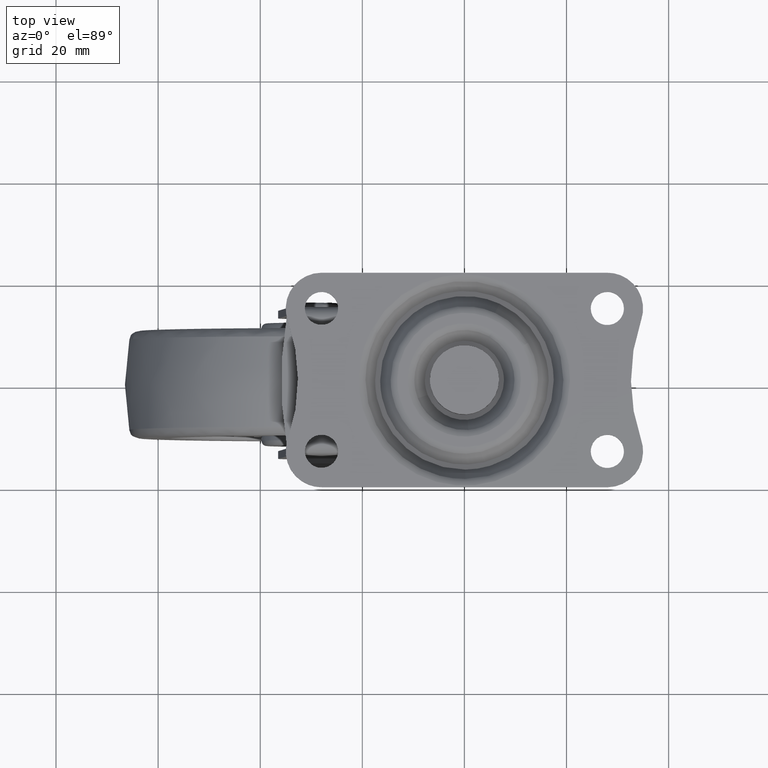
[diagram: clean part render]
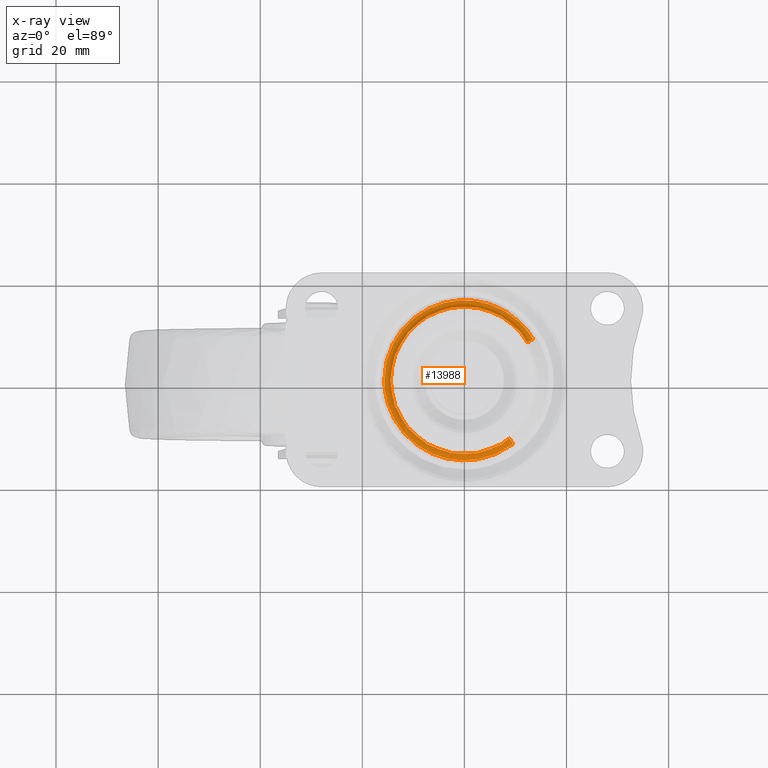
[diagram: x-ray — body ghosted, one internal face saturated and labeled with its STEP entity id]
A machine part, top view, then the same camera in x-ray: the body is ghosted and one INTERNAL B-rep face — a face not visible from any outside direction — is saturated and labeled: STEP entity #13988.
In plain terms, the highlighted face is a freeform B-spline surface patch.
Its self-contained STEP definition (entity closure, byte-faithful):
#10449=CARTESIAN_POINT('',(-13.317880826119840,5.457384386307230,-3.549999238447820));
#10450=VERTEX_POINT('',#10449);
#10490=CARTESIAN_POINT('',(-11.385173929811200,8.804930926861520,-3.549999238460730));
#10491=VERTEX_POINT('',#10490);
#10492=CARTESIAN_POINT('',(-13.317880826119840,5.457384386307230,-3.549999238447820));
#10493=CARTESIAN_POINT('',(-12.578342805289028,7.262109604605616,-3.549999238460730));
#10494=CARTESIAN_POINT('',(-11.385173929811200,8.804930926861520,-3.549999238460730));
#10502=(BOUNDED_CURVE()B_SPLINE_CURVE(2,(#10492,#10493,#10494),.UNSPECIFIED.,.F.,.U.)CURVE()GEOMETRIC_REPRESENTATION_ITEM()QUASI_UNIFORM_CURVE()RATIONAL_B_SPLINE_CURVE((1.0,0.990942874933649,1.0))REPRESENTATION_ITEM(''));
#10503=EDGE_CURVE('',#10450,#10491,#10502,.T.);
#10505=CARTESIAN_POINT('',(-10.648178946823061,9.683247345548729,-3.549999238447930));
#10506=VERTEX_POINT('',#10505);
#10575=CARTESIAN_POINT('',(-7.687100190629890,12.167887437763101,-3.549999238460730));
#10576=VERTEX_POINT('',#10575);
#10577=CARTESIAN_POINT('',(-10.648178946823061,9.683247345548729,-3.549999238447930));
#10578=CARTESIAN_POINT('',(-9.335988148031772,11.126197415850669,-3.549999238460730));
#10579=CARTESIAN_POINT('',(-7.687100190629888,12.167887437763090,-3.549999238460730));
#10587=(BOUNDED_CURVE()B_SPLINE_CURVE(2,(#10577,#10578,#10579),.UNSPECIFIED.,.F.,.U.)CURVE()GEOMETRIC_REPRESENTATION_ITEM()QUASI_UNIFORM_CURVE()RATIONAL_B_SPLINE_CURVE((1.0,0.990942874933648,1.0))REPRESENTATION_ITEM(''));
#10588=EDGE_CURVE('',#10506,#10576,#10587,.T.);
#10590=CARTESIAN_POINT('',(-6.694149536154360,12.741167765406759,-3.549999238447555));
#10591=VERTEX_POINT('',#10590);
#10660=CARTESIAN_POINT('',(-3.061848718942520,14.063217144777539,-3.549999238460730));
#10661=VERTEX_POINT('',#10660);
#10662=CARTESIAN_POINT('',(-6.694149536154360,12.741167765406759,-3.549999238447555));
#10663=CARTESIAN_POINT('',(-4.967575535610917,13.648301613558761,-3.549999238460730));
#10664=CARTESIAN_POINT('',(-3.061848718942521,14.063217144777539,-3.549999238460730));
#10672=(BOUNDED_CURVE()B_SPLINE_CURVE(2,(#10662,#10663,#10664),.UNSPECIFIED.,.F.,.U.)CURVE()GEOMETRIC_REPRESENTATION_ITEM()QUASI_UNIFORM_CURVE()RATIONAL_B_SPLINE_CURVE((1.0,0.990942874933651,1.0))REPRESENTATION_ITEM(''));
#10673=EDGE_CURVE('',#10591,#10661,#10672,.T.);
#10675=CARTESIAN_POINT('',(-1.932706896301035,14.262315313147020,-3.549999238447665));
#10676=VERTEX_POINT('',#10675);
#10745=CARTESIAN_POINT('',(1.932706896323755,14.262315313151561,-3.549999238460730));
#10746=VERTEX_POINT('',#10745);
#10747=CARTESIAN_POINT('',(-1.932706896301035,14.262315313147020,-3.549999238447665));
#10748=CARTESIAN_POINT('',(1.105409E-011,14.524219209192314,-3.549999238460730));
#10749=CARTESIAN_POINT('',(1.932706896323754,14.262315313151561,-3.549999238460730));
#10757=(BOUNDED_CURVE()B_SPLINE_CURVE(2,(#10747,#10748,#10749),.UNSPECIFIED.,.F.,.U.)CURVE()GEOMETRIC_REPRESENTATION_ITEM()QUASI_UNIFORM_CURVE()RATIONAL_B_SPLINE_CURVE((1.0,0.990942874933650,1.0))REPRESENTATION_ITEM(''));
#10758=EDGE_CURVE('',#10676,#10746,#10757,.T.);
#10760=CARTESIAN_POINT('',(3.061848718962025,14.063217144765700,-3.549999238447850));
#10761=VERTEX_POINT('',#10760);
#10830=CARTESIAN_POINT('',(6.694149536177440,12.741167765403221,-3.549999238460730));
#10831=VERTEX_POINT('',#10830);
#10832=CARTESIAN_POINT('',(3.061848718962025,14.063217144765700,-3.549999238447850));
#10833=CARTESIAN_POINT('',(4.967575535631633,13.648301613551254,-3.549999238460730));
#10834=CARTESIAN_POINT('',(6.694149536177442,12.741167765403230,-3.549999238460730));
#10842=(BOUNDED_CURVE()B_SPLINE_CURVE(2,(#10832,#10833,#10834),.UNSPECIFIED.,.F.,.U.)CURVE()GEOMETRIC_REPRESENTATION_ITEM()QUASI_UNIFORM_CURVE()RATIONAL_B_SPLINE_CURVE((1.0,0.990942874933649,1.0))REPRESENTATION_ITEM(''));
#10843=EDGE_CURVE('',#10761,#10831,#10842,.T.);
#10845=CARTESIAN_POINT('',(7.687100190644250,12.167887437745160,-3.549999238447770));
#10846=VERTEX_POINT('',#10845);
#10915=CARTESIAN_POINT('',(10.648178946842959,9.683247345537820,-3.549999238460730));
#10916=VERTEX_POINT('',#10915);
#10917=CARTESIAN_POINT('',(7.687100190644250,12.167887437745160,-3.549999238447770));
#10918=CARTESIAN_POINT('',(9.335988148048452,11.126197415836646,-3.549999238460730));
#10919=CARTESIAN_POINT('',(10.648178946842959,9.683247345537824,-3.549999238460730));
#10927=(BOUNDED_CURVE()B_SPLINE_CURVE(2,(#10917,#10918,#10919),.UNSPECIFIED.,.F.,.U.)CURVE()GEOMETRIC_REPRESENTATION_ITEM()QUASI_UNIFORM_CURVE()RATIONAL_B_SPLINE_CURVE((1.0,0.990942874933650,1.0))REPRESENTATION_ITEM(''));
#10928=EDGE_CURVE('',#10846,#10916,#10927,.T.);
#10930=CARTESIAN_POINT('',(11.385173929818460,8.804930926840042,-3.549999238447930));
#10931=VERTEX_POINT('',#10930);
#11000=CARTESIAN_POINT('',(12.342099500582320,7.404159237615483,-3.549999242034045));
#11001=VERTEX_POINT('',#11000);
#11002=CARTESIAN_POINT('',(11.385173929818460,8.804930926840042,-3.549999238447930));
#11003=CARTESIAN_POINT('',(11.904984940320325,8.132791779545675,-3.549999238453506));
#11004=CARTESIAN_POINT('',(12.342099500582320,7.404159237615483,-3.549999242034045));
#11012=(BOUNDED_CURVE()B_SPLINE_CURVE(2,(#11002,#11003,#11004),.UNSPECIFIED.,.F.,.U.)B_SPLINE_CURVE_WITH_KNOTS((3,3),(0.0,0.437894081817530),.UNSPECIFIED.)CURVE()GEOMETRIC_REPRESENTATION_ITEM()RATIONAL_B_SPLINE_CURVE((1.0,0.996033938535163,0.995541306757480))REPRESENTATION_ITEM(''));
#11013=EDGE_CURVE('',#10931,#11001,#11012,.T.);
#11355=CARTESIAN_POINT('',(8.779708553024026,-11.404635540456390,-3.549999241338663));
#11356=VERTEX_POINT('',#11355);
#11370=CARTESIAN_POINT('',(7.687100190629910,-12.167887437763079,-3.549999238460730));
#11371=VERTEX_POINT('',#11370);
#11372=CARTESIAN_POINT('',(8.779708553024026,-11.404635540456395,-3.549999241338663));
#11373=CARTESIAN_POINT('',(8.251093088970979,-11.811583195261921,-3.549999238460730));
#11374=CARTESIAN_POINT('',(7.687100190629914,-12.167887437763079,-3.549999238460730));
#11382=(BOUNDED_CURVE()B_SPLINE_CURVE(2,(#11372,#11373,#11374),.UNSPECIFIED.,.F.,.U.)B_SPLINE_CURVE_WITH_KNOTS((3,3),(0.655905070459708,1.0),.UNSPECIFIED.)CURVE()GEOMETRIC_REPRESENTATION_ITEM()RATIONAL_B_SPLINE_CURVE((0.995911729513132,0.996883489188456,1.0))REPRESENTATION_ITEM(''));
#11383=EDGE_CURVE('',#11356,#11371,#11382,.T.);
#11385=CARTESIAN_POINT('',(6.694149536154261,-12.741167765406800,-3.549999238447500));
#11386=VERTEX_POINT('',#11385);
#11455=CARTESIAN_POINT('',(3.061848718942540,-14.063217144777539,-3.549999238460730));
#11456=VERTEX_POINT('',#11455);
#11457=CARTESIAN_POINT('',(6.694149536154261,-12.741167765406800,-3.549999238447500));
#11458=CARTESIAN_POINT('',(4.967575535610878,-13.648301613558763,-3.549999238460730));
#11459=CARTESIAN_POINT('',(3.061848718942541,-14.063217144777539,-3.549999238460730));
#11467=(BOUNDED_CURVE()B_SPLINE_CURVE(2,(#11457,#11458,#11459),.UNSPECIFIED.,.F.,.U.)CURVE()GEOMETRIC_REPRESENTATION_ITEM()QUASI_UNIFORM_CURVE()RATIONAL_B_SPLINE_CURVE((1.0,0.990942874933652,1.0))REPRESENTATION_ITEM(''));
#11468=EDGE_CURVE('',#11386,#11456,#11467,.T.);
#11470=CARTESIAN_POINT('',(1.932706896300940,-14.262315313147001,-3.549999238447610));
#11471=VERTEX_POINT('',#11470);
#11540=CARTESIAN_POINT('',(-1.932706896323725,-14.262315313151561,-3.549999238460730));
#11541=VERTEX_POINT('',#11540);
#11542=CARTESIAN_POINT('',(1.932706896300940,-14.262315313147001,-3.549999238447610));
#11543=CARTESIAN_POINT('',(-1.107578E-011,-14.524219209192303,-3.549999238460730));
#11544=CARTESIAN_POINT('',(-1.932706896323718,-14.262315313151570,-3.549999238460730));
#11552=(BOUNDED_CURVE()B_SPLINE_CURVE(2,(#11542,#11543,#11544),.UNSPECIFIED.,.F.,.U.)CURVE()GEOMETRIC_REPRESENTATION_ITEM()QUASI_UNIFORM_CURVE()RATIONAL_B_SPLINE_CURVE((1.0,0.990942874933651,1.0))REPRESENTATION_ITEM(''));
#11553=EDGE_CURVE('',#11471,#11541,#11552,.T.);
#11555=CARTESIAN_POINT('',(-3.061848718962315,-14.063217144765501,-3.549999238447665));
#11556=VERTEX_POINT('',#11555);
#11625=CARTESIAN_POINT('',(-6.694149536177420,-12.741167765403240,-3.549999238460730));
#11626=VERTEX_POINT('',#11625);
#11627=CARTESIAN_POINT('',(-3.061848718962315,-14.063217144765501,-3.549999238447665));
#11628=CARTESIAN_POINT('',(-4.967575535631754,-13.648301613551183,-3.549999238460730));
#11629=CARTESIAN_POINT('',(-6.694149536177418,-12.741167765403240,-3.549999238460730));
#11637=(BOUNDED_CURVE()B_SPLINE_CURVE(2,(#11627,#11628,#11629),.UNSPECIFIED.,.F.,.U.)CURVE()GEOMETRIC_REPRESENTATION_ITEM()QUASI_UNIFORM_CURVE()RATIONAL_B_SPLINE_CURVE((1.0,0.990942874933650,1.0))REPRESENTATION_ITEM(''));
#11638=EDGE_CURVE('',#11556,#11626,#11637,.T.);
#11640=CARTESIAN_POINT('',(-7.687100190644140,-12.167887437745319,-3.549999238447875));
#11641=VERTEX_POINT('',#11640);
#11710=CARTESIAN_POINT('',(-10.648178946842940,-9.683247345537838,-3.549999238460730));
#11711=VERTEX_POINT('',#11710);
#11712=CARTESIAN_POINT('',(-7.687100190644140,-12.167887437745319,-3.549999238447875));
#11713=CARTESIAN_POINT('',(-9.335988148048376,-11.126197415836728,-3.549999238460730));
#11714=CARTESIAN_POINT('',(-10.648178946842940,-9.683247345537843,-3.549999238460730));
#11722=(BOUNDED_CURVE()B_SPLINE_CURVE(2,(#11712,#11713,#11714),.UNSPECIFIED.,.F.,.U.)CURVE()GEOMETRIC_REPRESENTATION_ITEM()QUASI_UNIFORM_CURVE()RATIONAL_B_SPLINE_CURVE((1.0,0.990942874933649,1.0))REPRESENTATION_ITEM(''));
#11723=EDGE_CURVE('',#11641,#11711,#11722,.T.);
#11725=CARTESIAN_POINT('',(-11.385173929818601,-8.804930926839681,-3.549999238447720));
#11726=VERTEX_POINT('',#11725);
#11795=CARTESIAN_POINT('',(-12.138656058658190,-7.733176781139918,-3.549999238455045));
#11796=VERTEX_POINT('',#11795);
#11797=CARTESIAN_POINT('',(-11.385173929818601,-8.804930926839681,-3.549999238447720));
#11798=CARTESIAN_POINT('',(-11.786329746203338,-8.286218312236400,-3.549999238452094));
#11799=CARTESIAN_POINT('',(-12.138656058658185,-7.733176781139918,-3.549999238455045));
#11807=(BOUNDED_CURVE()B_SPLINE_CURVE(2,(#11797,#11798,#11799),.UNSPECIFIED.,.F.,.U.)B_SPLINE_CURVE_WITH_KNOTS((3,3),(0.0,0.338243957585225),.UNSPECIFIED.)CURVE()GEOMETRIC_REPRESENTATION_ITEM()RATIONAL_B_SPLINE_CURVE((1.0,0.996936482173213,0.995945397134157))REPRESENTATION_ITEM(''));
#11808=EDGE_CURVE('',#11726,#11796,#11807,.T.);
#11873=CARTESIAN_POINT('',(-13.710027665785461,4.379969799239710,-3.549999238460730));
#11874=VERTEX_POINT('',#11873);
#11943=CARTESIAN_POINT('',(-13.317880826134919,-5.457384386290060,-3.549999238460730));
#11944=VERTEX_POINT('',#11943);
#11945=CARTESIAN_POINT('',(-12.138656058658185,-7.733176781139918,-3.549999238455045));
#11946=CARTESIAN_POINT('',(-12.829995378939145,-6.647991421206299,-3.549999238460730));
#11947=CARTESIAN_POINT('',(-13.317880826134930,-5.457384386290072,-3.549999238460730));
#11955=(BOUNDED_CURVE()B_SPLINE_CURVE(2,(#11945,#11946,#11947),.UNSPECIFIED.,.F.,.U.)B_SPLINE_CURVE_WITH_KNOTS((3,3),(0.338243957585225,1.0),.UNSPECIFIED.)CURVE()GEOMETRIC_REPRESENTATION_ITEM()RATIONAL_B_SPLINE_CURVE((0.995945397134157,0.994006392760437,1.0))REPRESENTATION_ITEM(''));
#11956=EDGE_CURVE('',#11796,#11944,#11955,.T.);
#11958=CARTESIAN_POINT('',(-13.710027665784940,-4.379969799216605,-3.549999238447690));
#11959=VERTEX_POINT('',#11958);
#12028=CARTESIAN_POINT('',(-14.381249726807320,-0.573280327640151,-3.549999238460730));
#12029=VERTEX_POINT('',#12028);
#12030=CARTESIAN_POINT('',(-13.710027665784940,-4.379969799216605,-3.549999238447690));
#12031=CARTESIAN_POINT('',(-14.303563683663349,-2.522104197700422,-3.549999238460730));
#12032=CARTESIAN_POINT('',(-14.381249726807329,-0.573280327640152,-3.549999238460730));
#12040=(BOUNDED_CURVE()B_SPLINE_CURVE(2,(#12030,#12031,#12032),.UNSPECIFIED.,.F.,.U.)CURVE()GEOMETRIC_REPRESENTATION_ITEM()QUASI_UNIFORM_CURVE()RATIONAL_B_SPLINE_CURVE((1.0,0.990942874933650,1.0))REPRESENTATION_ITEM(''));
#12041=EDGE_CURVE('',#11959,#12029,#12040,.T.);
#12043=CARTESIAN_POINT('',(-14.381249726798879,0.573280327661805,-3.549999238447610));
#12044=VERTEX_POINT('',#12043);
#12113=CARTESIAN_POINT('',(-14.381249726798879,0.573280327661805,-3.549999238447610));
#12114=CARTESIAN_POINT('',(-14.303563683659505,2.522104197722196,-3.549999238460730));
#12115=CARTESIAN_POINT('',(-13.710027665785470,4.379969799239713,-3.549999238460730));
#12123=(BOUNDED_CURVE()B_SPLINE_CURVE(2,(#12113,#12114,#12115),.UNSPECIFIED.,.F.,.U.)CURVE()GEOMETRIC_REPRESENTATION_ITEM()QUASI_UNIFORM_CURVE()RATIONAL_B_SPLINE_CURVE((1.0,0.990942874933651,1.0))REPRESENTATION_ITEM(''));
#12124=EDGE_CURVE('',#12044,#11874,#12123,.T.);
#13551=CARTESIAN_POINT('',(9.617536650804698,-12.492957508065260,-4.298151745412562));
#13552=CARTESIAN_POINT('',(8.893872435965106,-13.050060748399057,-4.298151745412563));
#13553=CARTESIAN_POINT('',(8.110722905467547,-13.519880638475321,-4.298151745412561));
#13554=CARTESIAN_POINT('',(-5.409157733007774,-21.630603543942868,-4.298151745412562));
#13555=CARTESIAN_POINT('',(-13.519880638475321,-8.110722905467549,-4.298151745412561));
#13556=CARTESIAN_POINT('',(-21.630603543942868,5.409157733007772,-4.298151745412562));
#13557=CARTESIAN_POINT('',(-8.110722905467551,13.519880638475321,-4.298151745412561));
#13558=CARTESIAN_POINT('',(5.409157733007771,21.630603543942868,-4.298151745412562));
#13559=CARTESIAN_POINT('',(13.519880638475321,8.110722905467551,-4.298151745412561));
#13560=CARTESIAN_POINT('',(9.027617740540732,-11.726666497516813,-4.346193176694547));
#13561=CARTESIAN_POINT('',(8.348341524469982,-12.249598229243491,-4.346193176694546));
#13562=CARTESIAN_POINT('',(7.613228693428743,-12.690600382758184,-4.346193176694546));
#13563=CARTESIAN_POINT('',(-5.077371689329442,-20.303829076186933,-4.346193176694546));
#13564=CARTESIAN_POINT('',(-12.690600382758184,-7.613228693428743,-4.346193176694546));
#13565=CARTESIAN_POINT('',(-20.303829076186933,5.077371689329440,-4.346193176694546));
#13566=CARTESIAN_POINT('',(-7.613228693428745,12.690600382758184,-4.346193176694546));
#13567=CARTESIAN_POINT('',(5.077371689329438,20.303829076186933,-4.346193176694546));
#13568=CARTESIAN_POINT('',(12.690600382758184,7.613228693428745,-4.346193176694546));
#13569=CARTESIAN_POINT('',(8.758007435609542,-11.376448951638260,-3.484699028897978));
#13570=CARTESIAN_POINT('',(8.099017841437377,-11.883763298169741,-3.484699028897978));
#13571=CARTESIAN_POINT('',(7.385859195900234,-12.311594897890327,-3.484699028897977));
#13572=CARTESIAN_POINT('',(-4.925735701990094,-19.697454093790565,-3.484699028897977));
#13573=CARTESIAN_POINT('',(-12.311594897890327,-7.385859195900234,-3.484699028897977));
#13574=CARTESIAN_POINT('',(-19.697454093790565,4.925735701990091,-3.484699028897977));
#13575=CARTESIAN_POINT('',(-7.385859195900235,12.311594897890327,-3.484699028897977));
#13576=CARTESIAN_POINT('',(4.925735701990089,19.697454093790565,-3.484699028897977));
#13577=CARTESIAN_POINT('',(12.311594897890327,7.385859195900236,-3.484699028897977));
#13585=(BOUNDED_SURFACE()B_SPLINE_SURFACE(2,2,((#13551,#13560,#13569),(#13552,#13561,#13570),(#13553,#13562,#13571),(#13554,#13563,#13572),(#13555,#13564,#13573),(#13556,#13565,#13574),(#13557,#13566,#13575),(#13558,#13567,#13576),(#13559,#13568,#13577)),.UNSPECIFIED.,.F.,.F.,.U.)B_SPLINE_SURFACE_WITH_KNOTS((3,2,2,2,3),(3,3),(0.0,2.089772968706357,28.211959989594678,54.334147010482987,80.456334031371313),(0.0,1.768304401214299),.UNSPECIFIED.)GEOMETRIC_REPRESENTATION_ITEM()RATIONAL_B_SPLINE_SURFACE(((0.881573213290315,0.741118985900789,0.882647111706563),(0.899706493346227,0.756363230988425,0.900802481023400),(0.921293727586656,0.774511138510431,0.922416011998250),(0.651453042241156,0.547662078145239,0.652246617159015),(0.921293727586656,0.774511138510431,0.922416011998250),(0.651453042241156,0.547662078145239,0.652246617159015),(0.921293727586656,0.774511138510431,0.922416011998250),(0.651453042241156,0.547662078145239,0.652246617159015),(0.921293727586656,0.774511138510431,0.922416011998250)))REPRESENTATION_ITEM('')SURFACE());
#13586=CARTESIAN_POINT('',(9.572137941933168,-12.433982735335970,-4.299999238460730));
#13587=VERTEX_POINT('',#13586);
#13588=CARTESIAN_POINT('',(-15.691709645000250,0.0,-4.299999238460730));
#13589=VERTEX_POINT('',#13588);
#13590=CARTESIAN_POINT('',(9.572137941933168,-12.433982735335977,-4.299999238460730));
#13591=CARTESIAN_POINT('',(5.340427082148841,-15.691709645000246,-4.299999238460730));
#13592=CARTESIAN_POINT('',(0.0,-15.691709645000250,-4.299999238460730));
#13593=CARTESIAN_POINT('',(-15.691709645000254,-15.691709645000254,-4.299999238460730));
#13594=CARTESIAN_POINT('',(-15.691709645000250,0.0,-4.299999238460730));
#13602=(BOUNDED_CURVE()B_SPLINE_CURVE(2,(#13590,#13591,#13592,#13593,#13594),.UNSPECIFIED.,.F.,.U.)B_SPLINE_CURVE_WITH_KNOTS((3,2,3),(0.644540406164488,0.750000000000000,1.0),.UNSPECIFIED.)CURVE()GEOMETRIC_REPRESENTATION_ITEM()RATIONAL_B_SPLINE_CURVE((0.857132100277108,0.876446400427030,1.0,0.707106781186547,1.0))REPRESENTATION_ITEM(''));
#13603=EDGE_CURVE('',#13587,#13589,#13602,.T.);
#13604=ORIENTED_EDGE('',*,*,#13603,.T.);
#13605=CARTESIAN_POINT('',(13.456059301618900,8.072435793900297,-4.299999238460730));
#13606=VERTEX_POINT('',#13605);
#13607=CARTESIAN_POINT('',(-15.691709645000250,0.0,-4.299999238460730));
#13608=CARTESIAN_POINT('',(-15.691709645000254,15.691709645000254,-4.299999238460730));
#13609=CARTESIAN_POINT('',(0.0,15.691709645000250,-4.299999238460730));
#13610=CARTESIAN_POINT('',(8.885174351067740,15.691709645000243,-4.299999238460729));
#13611=CARTESIAN_POINT('',(13.456059301618897,8.072435793900297,-4.299999238460730));
#13619=(BOUNDED_CURVE()B_SPLINE_CURVE(2,(#13607,#13608,#13609,#13610,#13611),.UNSPECIFIED.,.F.,.U.)B_SPLINE_CURVE_WITH_KNOTS((3,2,3),(0.0,0.250000000000000,0.412160451658588),.UNSPECIFIED.)CURVE()GEOMETRIC_REPRESENTATION_ITEM()RATIONAL_B_SPLINE_CURVE((1.0,0.707106781186547,1.0,0.810017213397892,0.866495982657823))REPRESENTATION_ITEM(''));
#13620=EDGE_CURVE('',#13589,#13606,#13619,.T.);
#13621=ORIENTED_EDGE('',*,*,#13620,.T.);
#13622=CARTESIAN_POINT('',(13.456059301618907,8.072435793900297,-4.299999238460730));
#13623=CARTESIAN_POINT('',(12.713419437733407,7.626918091790882,-4.299999238178653));
#13624=CARTESIAN_POINT('',(12.342099500582320,7.404159237615485,-3.549999242034045));
#13632=(BOUNDED_CURVE()B_SPLINE_CURVE(2,(#13622,#13623,#13624),.UNSPECIFIED.,.F.,.U.)B_SPLINE_CURVE_WITH_KNOTS((3,3),(-1.630685373385431,-0.364008794580820),.UNSPECIFIED.)CURVE()GEOMETRIC_REPRESENTATION_ITEM()RATIONAL_B_SPLINE_CURVE((0.908569702288071,0.787286138560376,0.909590037061556))REPRESENTATION_ITEM(''));
#13633=EDGE_CURVE('',#13606,#11001,#13632,.T.);
#13634=ORIENTED_EDGE('',*,*,#13633,.T.);
#13635=ORIENTED_EDGE('',*,*,#11013,.F.);
#13636=CARTESIAN_POINT('',(10.648178946842970,9.683247345537829,-3.549999238460727));
#13637=CARTESIAN_POINT('',(10.687342733718509,9.661825798238388,-3.575222179074181));
#13638=CARTESIAN_POINT('',(10.726417845782951,9.637293443798457,-3.595430862376615));
#13639=CARTESIAN_POINT('',(10.803823520388400,9.583193867169701,-3.629143039793382));
#13640=CARTESIAN_POINT('',(10.842162399280109,9.553599199014396,-3.642580942354348));
#13641=CARTESIAN_POINT('',(10.898864628303929,9.505595911821708,-3.658566899178990));
#13642=CARTESIAN_POINT('',(10.917683713662029,9.488935997965127,-3.663197523269508));
#13643=CARTESIAN_POINT('',(10.954478756590690,9.454907781127997,-3.671010776794998));
#13644=CARTESIAN_POINT('',(10.972515429922790,9.437492131379059,-3.674213837698281));
#13645=CARTESIAN_POINT('',(11.025561084402231,9.384071385567900,-3.681864492139412));
#13646=CARTESIAN_POINT('',(11.059510093557540,9.346898582630571,-3.684375347462299));
#13647=CARTESIAN_POINT('',(11.124557711939961,9.269433694009326,-3.684418330275068));
#13648=CARTESIAN_POINT('',(11.155768638307130,9.228939106249539,-3.681897579139849));
#13649=CARTESIAN_POINT('',(11.213630061014390,9.146972845062622,-3.671738701665908));
#13650=CARTESIAN_POINT('',(11.240495499205419,9.105274990739241,-3.664128094000679));
#13651=CARTESIAN_POINT('',(11.290031778249579,9.020558999789154,-3.643168707407534));
#13652=CARTESIAN_POINT('',(11.312711456763781,8.977540052684516,-3.629848356728803));
#13653=CARTESIAN_POINT('',(11.353395872409950,8.890291978567879,-3.595623932184477));
#13654=CARTESIAN_POINT('',(11.370914842949521,8.847112161431564,-3.575158133124866));
#13655=CARTESIAN_POINT('',(11.385173929818460,8.804930926840042,-3.549999238447930));
#13656=B_SPLINE_CURVE_WITH_KNOTS('',3,(#13636,#13637,#13638,#13639,#13640,#13641,#13642,#13643,#13644,#13645,#13646,#13647,#13648,#13649,#13650,#13651,#13652,#13653,#13654,#13655),.UNSPECIFIED.,.F.,.U.,(4,2,2,2,2,2,2,2,2,4),(0.0,0.125000000000000,0.250000000000000,0.312500000000000,0.375000000000000,0.500000000000000,0.625000000000000,0.750000000000000,0.875000000000000,1.0),.UNSPECIFIED.);
#13657=EDGE_CURVE('',#10916,#10931,#13656,.T.);
#13658=ORIENTED_EDGE('',*,*,#13657,.F.);
#13659=ORIENTED_EDGE('',*,*,#10928,.F.);
#13660=CARTESIAN_POINT('',(6.694149536177440,12.741167765403221,-3.549999238460730));
#13661=CARTESIAN_POINT('',(6.738278058384052,12.734432899480460,-3.575222179074161));
#13662=CARTESIAN_POINT('',(6.783387212229073,12.724744502471500,-3.595430862376600));
#13663=CARTESIAN_POINT('',(6.874627898415216,12.700381829448579,-3.629143039793377));
#13664=CARTESIAN_POINT('',(6.920776632643126,12.685684607021919,-3.642580942354343));
#13665=CARTESIAN_POINT('',(6.990477390004688,12.659969576771079,-3.658566899178986));
#13666=CARTESIAN_POINT('',(7.013859571770654,12.650750884928559,-3.663197523269505));
#13667=CARTESIAN_POINT('',(7.060073937691981,12.631359466524330,-3.671010776794994));
#13668=CARTESIAN_POINT('',(7.082979369548929,12.621163014567220,-3.674213837698270));
#13669=CARTESIAN_POINT('',(7.151096950766930,12.589106616279439,-3.681864492139396));
#13670=CARTESIAN_POINT('',(7.195712431541618,12.565786852642351,-3.684375347462285));
#13671=CARTESIAN_POINT('',(7.283331750844246,12.515241264197099,-3.684418330275044));
#13672=CARTESIAN_POINT('',(7.326510392748880,12.487863564406879,-3.681897579139815));
#13673=CARTESIAN_POINT('',(7.408916457094095,12.430630245703460,-3.671738701665857));
#13674=CARTESIAN_POINT('',(7.448423217228459,12.400635600713761,-3.664128094000618));
#13675=CARTESIAN_POINT('',(7.523946668474179,12.337971014413871,-3.643168707407445));
#13676=CARTESIAN_POINT('',(7.559971941470214,12.305303334161669,-3.629848356728700));
#13677=CARTESIAN_POINT('',(7.628043385448173,12.237231852406870,-3.595623932184331));
#13678=CARTESIAN_POINT('',(7.659274200033707,12.202647937691850,-3.575158133124706));
#13679=CARTESIAN_POINT('',(7.687100190644250,12.167887437745160,-3.549999238447770));
#13680=B_SPLINE_CURVE_WITH_KNOTS('',3,(#13660,#13661,#13662,#13663,#13664,#13665,#13666,#13667,#13668,#13669,#13670,#13671,#13672,#13673,#13674,#13675,#13676,#13677,#13678,#13679),.UNSPECIFIED.,.F.,.U.,(4,2,2,2,2,2,2,2,2,4),(0.0,0.125000000000002,0.250000000000003,0.312500000000003,0.375000000000003,0.500000000000002,0.625000000000002,0.750000000000001,0.875000000000001,1.0),.UNSPECIFIED.);
#13681=EDGE_CURVE('',#10831,#10846,#13680,.T.);
#13682=ORIENTED_EDGE('',*,*,#13681,.F.);
#13683=ORIENTED_EDGE('',*,*,#10843,.F.);
#13684=CARTESIAN_POINT('',(1.932706896323752,14.262315313151580,-3.549999238460735));
#13685=CARTESIAN_POINT('',(1.976477602815655,14.271079452831829,-3.575222179074192));
#13686=CARTESIAN_POINT('',(2.022179968747310,14.277403576918640,-3.595430862376632));
#13687=CARTESIAN_POINT('',(2.116250693190956,14.285716305422900,-3.629143039793403));
#13688=CARTESIAN_POINT('',(2.164643064324383,14.287689230657451,-3.642580942354366));
#13689=CARTESIAN_POINT('',(2.238935410012235,14.287364069510160,-3.658566899179009));
#13690=CARTESIAN_POINT('',(2.264060451980853,14.286698509971300,-3.663197523269528));
#13691=CARTESIAN_POINT('',(2.314120006313319,14.284282781246400,-3.671010776795018));
#13692=CARTESIAN_POINT('',(2.339131463564987,14.282535369670761,-3.674213837698297));
#13693=CARTESIAN_POINT('',(2.414104985918210,14.275709793641930,-3.681864492139428));
#13694=CARTESIAN_POINT('',(2.464005652876467,14.269055776962800,-3.684375347462308));
#13695=CARTESIAN_POINT('',(2.563628490067943,14.251526032633500,-3.684418330275074));
#13696=CARTESIAN_POINT('',(2.613566866047470,14.240567375459371,-3.681897579139851));
#13697=CARTESIAN_POINT('',(2.710578184486614,14.214970182148949,-3.671738701665901));
#13698=CARTESIAN_POINT('',(2.757961168234407,14.200296543352531,-3.664128094000668));
#13699=CARTESIAN_POINT('',(2.850362548854015,14.167241635641441,-3.643168707407509));
#13700=CARTESIAN_POINT('',(2.895388236732163,14.148865426603701,-3.629848356728772));
#13701=CARTESIAN_POINT('',(2.982636288270652,14.108180962538500,-3.595623932184426));
#13702=CARTESIAN_POINT('',(3.023812049745418,14.086364280763631,-3.575158133124810));
#13703=CARTESIAN_POINT('',(3.061848718962025,14.063217144765700,-3.549999238447850));
#13704=B_SPLINE_CURVE_WITH_KNOTS('',3,(#13684,#13685,#13686,#13687,#13688,#13689,#13690,#13691,#13692,#13693,#13694,#13695,#13696,#13697,#13698,#13699,#13700,#13701,#13702,#13703),.UNSPECIFIED.,.F.,.U.,(4,2,2,2,2,2,2,2,2,4),(0.0,0.124999999999999,0.249999999999997,0.312499999999997,0.374999999999997,0.499999999999998,0.624999999999998,0.749999999999999,0.874999999999999,1.0),.UNSPECIFIED.);
#13705=EDGE_CURVE('',#10746,#10761,#13704,.T.);
#13706=ORIENTED_EDGE('',*,*,#13705,.F.);
#13707=ORIENTED_EDGE('',*,*,#10758,.F.);
#13708=CARTESIAN_POINT('',(-3.061848718942523,14.063217144777550,-3.549999238460725));
#13709=CARTESIAN_POINT('',(-3.023715221355051,14.086423205470460,-3.575222179074191));
#13710=CARTESIAN_POINT('',(-2.982932023163181,14.107997067954040,-3.595430862376634));
#13711=CARTESIAN_POINT('',(-2.897377578165929,14.147982560245060,-3.629143039793413));
#13712=CARTESIAN_POINT('',(-2.852578404280991,14.166387669240260,-3.642580942354382));
#13713=CARTESIAN_POINT('',(-2.782655223595015,14.191491596429740,-3.658566899179024));
#13714=CARTESIAN_POINT('',(-2.758817772291288,14.199459445497560,-3.663197523269543));
#13715=CARTESIAN_POINT('',(-2.710950950600495,14.214310778988560,-3.671010776795030));
#13716=CARTESIAN_POINT('',(-2.686850218828443,14.221223171419449,-3.674213837698307));
#13717=CARTESIAN_POINT('',(-2.614063668627108,14.240451682853440,-3.681864492139431));
#13718=CARTESIAN_POINT('',(-2.564896572375834,14.251265985746590,-3.684375347462313));
#13719=CARTESIAN_POINT('',(-2.465286201737241,14.268866431410800,-3.684418330275064));
#13720=CARTESIAN_POINT('',(-2.414611396837881,14.275648592640509,-3.681897579139834));
#13721=CARTESIAN_POINT('',(-2.314695821043112,14.284774924010650,-3.671738701665867));
#13722=CARTESIAN_POINT('',(-2.265151700820218,14.287192148806181,-3.664128094000617));
#13723=CARTESIAN_POINT('',(-2.167017361028552,14.287733829392311,-3.643168707407431));
#13724=CARTESIAN_POINT('',(-2.118422020734761,14.285865533582930,-3.629848356728675));
#13725=CARTESIAN_POINT('',(-2.022520764295363,14.277475234012289,-3.595623932184284));
#13726=CARTESIAN_POINT('',(-1.976366460454752,14.271057198979539,-3.575158133124648));
#13727=CARTESIAN_POINT('',(-1.932706896301035,14.262315313147020,-3.549999238447665));
#13728=B_SPLINE_CURVE_WITH_KNOTS('',3,(#13708,#13709,#13710,#13711,#13712,#13713,#13714,#13715,#13716,#13717,#13718,#13719,#13720,#13721,#13722,#13723,#13724,#13725,#13726,#13727),.UNSPECIFIED.,.F.,.U.,(4,2,2,2,2,2,2,2,2,4),(0.0,0.125000000000001,0.250000000000002,0.312500000000002,0.375000000000002,0.500000000000001,0.625000000000001,0.750000000000001,0.875000000000000,1.0),.UNSPECIFIED.);
#13729=EDGE_CURVE('',#10661,#10676,#13728,.T.);
#13730=ORIENTED_EDGE('',*,*,#13729,.F.);
#13731=ORIENTED_EDGE('',*,*,#10673,.F.);
#13732=CARTESIAN_POINT('',(-7.687100190629895,12.167887437763101,-3.549999238460731));
#13733=CARTESIAN_POINT('',(-7.659203364546398,12.202736426064121,-3.575222179074201));
#13734=CARTESIAN_POINT('',(-7.628258389692164,12.236957900732660,-3.595430862376646));
#13735=CARTESIAN_POINT('',(-7.561539352857122,12.303793316317149,-3.629143039793427));
#13736=CARTESIAN_POINT('',(-7.525736817756593,12.336410681297689,-3.642580942354395));
#13737=CARTESIAN_POINT('',(-7.468616569619480,12.383915792710420,-3.658566899179036));
#13738=CARTESIAN_POINT('',(-7.448941857411192,12.399556010194400,-3.663197523269549));
#13739=CARTESIAN_POINT('',(-7.409041213497035,12.429883115899949,-3.671010776795035));
#13740=CARTESIAN_POINT('',(-7.388758111145230,12.444621575794169,-3.674213837698318));
#13741=CARTESIAN_POINT('',(-7.326937665265151,12.487584932429430,-3.681864492139439));
#13742=CARTESIAN_POINT('',(-7.284434417157829,12.514563190363830,-3.684375347462316));
#13743=CARTESIAN_POINT('',(-7.196850993863647,12.565170952519580,-3.684418330275060));
#13744=CARTESIAN_POINT('',(-7.151551889395790,12.588875903414801,-3.681897579139824));
#13745=CARTESIAN_POINT('',(-7.060783349283099,12.631624989211950,-3.671738701665844));
#13746=CARTESIAN_POINT('',(-7.015053844677326,12.650841524614670,-3.664128094000592));
#13747=CARTESIAN_POINT('',(-6.923022995401090,12.684914458825000,-3.643168707407388));
#13748=CARTESIAN_POINT('',(-6.876719317921928,12.699779420291719,-3.629848356728620));
#13749=CARTESIAN_POINT('',(-6.783731963460013,12.724695279171510,-3.595623932184200));
#13750=CARTESIAN_POINT('',(-6.738166007461713,12.734450000625939,-3.575158133124553));
#13751=CARTESIAN_POINT('',(-6.694149536154360,12.741167765406759,-3.549999238447555));
#13752=B_SPLINE_CURVE_WITH_KNOTS('',3,(#13732,#13733,#13734,#13735,#13736,#13737,#13738,#13739,#13740,#13741,#13742,#13743,#13744,#13745,#13746,#13747,#13748,#13749,#13750,#13751),.UNSPECIFIED.,.F.,.U.,(4,2,2,2,2,2,2,2,2,4),(0.0,0.125000000000004,0.250000000000007,0.312500000000007,0.375000000000008,0.500000000000006,0.625000000000005,0.750000000000003,0.875000000000002,1.0),.UNSPECIFIED.);
#13753=EDGE_CURVE('',#10576,#10591,#13752,.T.);
#13754=ORIENTED_EDGE('',*,*,#13753,.F.);
#13755=ORIENTED_EDGE('',*,*,#10588,.F.);
#13756=CARTESIAN_POINT('',(-11.385173929811190,8.804930926861523,-3.549999238460704));
#13757=CARTESIAN_POINT('',(-11.370878544170649,8.847219540465229,-3.575222179074161));
#13758=CARTESIAN_POINT('',(-11.353504213320690,8.889961012418496,-3.595430862376600));
#13759=CARTESIAN_POINT('',(-11.313667885158321,8.975585013791225,-3.629143039793372));
#13760=CARTESIAN_POINT('',(-11.291180302964490,9.018480499159407,-3.642580942354338));
#13761=CARTESIAN_POINT('',(-11.253752532306700,9.082656977258173,-3.658566899178982));
#13762=CARTESIAN_POINT('',(-11.240613619854010,9.104083122104715,-3.663197523269500));
#13763=CARTESIAN_POINT('',(-11.213491760243359,9.146228103496302,-3.671010776794990));
#13764=CARTESIAN_POINT('',(-11.199472728802160,9.167014955074096,-3.674213837698272));
#13765=CARTESIAN_POINT('',(-11.156074845389130,9.228531142028777,-3.681864492139402));
#13766=CARTESIAN_POINT('',(-11.125361964428670,9.268419378940850,-3.684375347462289));
#13767=CARTESIAN_POINT('',(-11.060369341921909,9.345930414581087,-3.684418330275055));
#13768=CARTESIAN_POINT('',(-11.025909678428000,9.383698988216027,-3.681897579139832));
#13769=CARTESIAN_POINT('',(-10.955236199536021,9.454914657783734,-3.671738701665887));
#13770=CARTESIAN_POINT('',(-10.918836963698469,9.488612706018216,-3.664128094000654));
#13771=CARTESIAN_POINT('',(-10.844009883591120,9.552107195124014,-3.643168707407502));
#13772=CARTESIAN_POINT('',(-10.805582775800110,9.581912480130486,-3.629848356728763));
#13773=CARTESIAN_POINT('',(-10.726724970611061,9.637129277160916,-3.595623932184425));
#13774=CARTESIAN_POINT('',(-10.687243289230381,9.661880191730777,-3.575158133124823));
#13775=CARTESIAN_POINT('',(-10.648178946823061,9.683247345548729,-3.549999238447930));
#13776=B_SPLINE_CURVE_WITH_KNOTS('',3,(#13756,#13757,#13758,#13759,#13760,#13761,#13762,#13763,#13764,#13765,#13766,#13767,#13768,#13769,#13770,#13771,#13772,#13773,#13774,#13775),.UNSPECIFIED.,.F.,.U.,(4,2,2,2,2,2,2,2,2,4),(0.0,0.125000000000001,0.250000000000002,0.312500000000003,0.375000000000004,0.500000000000003,0.625000000000002,0.750000000000002,0.875000000000001,1.0),.UNSPECIFIED.);
#13777=EDGE_CURVE('',#10491,#10506,#13776,.T.);
#13778=ORIENTED_EDGE('',*,*,#13777,.F.);
#13779=ORIENTED_EDGE('',*,*,#10503,.F.);
#13780=CARTESIAN_POINT('',(-13.710027665785470,4.379969799239719,-3.549999238460707));
#13781=CARTESIAN_POINT('',(-13.711057955073549,4.424597407232064,-3.575222179074169));
#13782=CARTESIAN_POINT('',(-13.709349868946150,4.470703624155576,-3.595430862376608));
#13783=CARTESIAN_POINT('',(-13.701201098554391,4.564788693075362,-3.629143039793383));
#13784=CARTESIAN_POINT('',(-13.694740803561171,4.612788470225858,-3.642580942354347));
#13785=CARTESIAN_POINT('',(-13.681519851899051,4.685895684608050,-3.658566899178990));
#13786=CARTESIAN_POINT('',(-13.676501485953439,4.710523447532441,-3.663197523269508));
#13787=CARTESIAN_POINT('',(-13.665429707191320,4.759402997860573,-3.671010776794997));
#13788=CARTESIAN_POINT('',(-13.659365648751381,4.783731040040406,-3.674213837698276));
#13789=CARTESIAN_POINT('',(-13.639624753029519,4.856380297285572,-3.681864492139405));
#13790=CARTESIAN_POINT('',(-13.624406665933570,4.904367403116048,-3.684375347462291));
#13791=CARTESIAN_POINT('',(-13.589843913677440,4.999432737401538,-3.684418330275054));
#13792=CARTESIAN_POINT('',(-13.570380035145259,5.046709486391049,-3.681897579139831));
#13793=CARTESIAN_POINT('',(-13.528325882057780,5.137802078948114,-3.671738701665878));
#13794=CARTESIAN_POINT('',(-13.505647200025940,5.181917158067051,-3.664128094000642));
#13795=CARTESIAN_POINT('',(-13.457049139278450,5.267174829603299,-3.643168707407479));
#13796=CARTESIAN_POINT('',(-13.431133477498870,5.308325480898578,-3.629848356728735));
#13797=CARTESIAN_POINT('',(-13.375916636705661,5.387183255444613,-3.595623932184380));
#13798=CARTESIAN_POINT('',(-13.347281303404619,5.423945037548191,-3.575158133124761));
#13799=CARTESIAN_POINT('',(-13.317880826119840,5.457384386307230,-3.549999238447820));
#13800=B_SPLINE_CURVE_WITH_KNOTS('',3,(#13780,#13781,#13782,#13783,#13784,#13785,#13786,#13787,#13788,#13789,#13790,#13791,#13792,#13793,#13794,#13795,#13796,#13797,#13798,#13799),.UNSPECIFIED.,.F.,.U.,(4,2,2,2,2,2,2,2,2,4),(0.0,0.124999999999999,0.249999999999997,0.312499999999996,0.374999999999995,0.499999999999996,0.624999999999997,0.749999999999998,0.874999999999999,1.0),.UNSPECIFIED.);
#13801=EDGE_CURVE('',#11874,#10450,#13800,.T.);
#13802=ORIENTED_EDGE('',*,*,#13801,.F.);
#13803=ORIENTED_EDGE('',*,*,#12124,.F.);
#13804=CARTESIAN_POINT('',(-14.381249726807329,-0.573280327640152,-3.549999238460723));
#13805=CARTESIAN_POINT('',(-14.397481422930451,-0.531696473416381,-3.575222179074193));
#13806=CARTESIAN_POINT('',(-14.411645601921260,-0.487786601738880,-3.595430862376638));
#13807=CARTESIAN_POINT('',(-14.436167251272391,-0.396588513131468,-3.629143039793419));
#13808=CARTESIAN_POINT('',(-14.446513450399790,-0.349273925724258,-3.642580942354390));
#13809=CARTESIAN_POINT('',(-14.459093959624260,-0.276053784060689,-3.658566899179033));
#13810=CARTESIAN_POINT('',(-14.462801429181960,-0.251194874734174,-3.663197523269547));
#13811=CARTESIAN_POINT('',(-14.469115151189150,-0.201476350624387,-3.671010776795034));
#13812=CARTESIAN_POINT('',(-14.471737480694291,-0.176541438773056,-3.674213837698317));
#13813=CARTESIAN_POINT('',(-14.478034616032240,-0.101521683850002,-3.681864492139441));
#13814=CARTESIAN_POINT('',(-14.480146848699629,-0.051223662278512,-3.684375347462318));
#13815=CARTESIAN_POINT('',(-14.480182744708101,0.049929688322521,-3.684418330275067));
#13816=CARTESIAN_POINT('',(-14.478062282144901,0.101012339007983,-3.681897579139838));
#13817=CARTESIAN_POINT('',(-14.469699806377450,0.200994743508566,-3.671738701665863));
#13818=CARTESIAN_POINT('',(-14.463477061906040,0.250205923901000,-3.664128094000609));
#13819=CARTESIAN_POINT('',(-14.446969663875549,0.346943444411235,-3.643168707407416));
#13820=CARTESIAN_POINT('',(-14.436691259392431,0.394476086130188,-3.629848356728651));
#13821=CARTESIAN_POINT('',(-14.411775348908490,0.487463426764805,-3.595623932184247));
#13822=CARTESIAN_POINT('',(-14.397440207495720,0.531802062934282,-3.575158133124607));
#13823=CARTESIAN_POINT('',(-14.381249726798879,0.573280327661805,-3.549999238447610));
#13824=B_SPLINE_CURVE_WITH_KNOTS('',3,(#13804,#13805,#13806,#13807,#13808,#13809,#13810,#13811,#13812,#13813,#13814,#13815,#13816,#13817,#13818,#13819,#13820,#13821,#13822,#13823),.UNSPECIFIED.,.F.,.U.,(4,2,2,2,2,2,2,2,2,4),(0.0,0.125000000000001,0.250000000000002,0.312500000000002,0.375000000000002,0.500000000000002,0.625000000000001,0.750000000000001,0.875000000000000,1.0),.UNSPECIFIED.);
#13825=EDGE_CURVE('',#12029,#12044,#13824,.T.);
#13826=ORIENTED_EDGE('',*,*,#13825,.F.);
#13827=ORIENTED_EDGE('',*,*,#12041,.F.);
#13828=CARTESIAN_POINT('',(-13.317880826134919,-5.457384386290046,-3.549999238460689));
#13829=CARTESIAN_POINT('',(-13.347356146986300,-5.423859912366583,-3.575222179074157));
#13830=CARTESIAN_POINT('',(-13.375684182067999,-5.387442564500112,-3.595430862376603));
#13831=CARTESIAN_POINT('',(-13.429918578349289,-5.310131291631613,-3.629143039793383));
#13832=CARTESIAN_POINT('',(-13.455823367288890,-5.269208731497962,-3.642580942354352));
#13833=CARTESIAN_POINT('',(-13.492687942318950,-5.204707092251883,-3.658566899178995));
#13834=CARTESIAN_POINT('',(-13.504674071834881,-5.182615387866483,-3.663197523269509));
#13835=CARTESIAN_POINT('',(-13.527611766556690,-5.138054677749973,-3.671010776794998));
#13836=CARTESIAN_POINT('',(-13.538604192367160,-5.115520414596534,-3.674213837698283));
#13837=CARTESIAN_POINT('',(-13.570179831307360,-5.047178651613007,-3.681864492139407));
#13838=CARTESIAN_POINT('',(-13.589367617305150,-5.000636398021788,-3.684375347462287));
#13839=CARTESIAN_POINT('',(-13.623997831989859,-4.905595618052204,-3.684418330275041));
#13840=CARTESIAN_POINT('',(-13.639476544475469,-4.856868387243129,-3.681897579139811));
#13841=CARTESIAN_POINT('',(-13.665814384022630,-4.760055524364967,-3.671738701665844));
#13842=CARTESIAN_POINT('',(-13.676798131932861,-4.711683837334054,-3.664128094000602));
#13843=CARTESIAN_POINT('',(-13.694372432445110,-4.615134440517144,-3.643168707407416));
#13844=CARTESIAN_POINT('',(-13.700971012532239,-4.566952946472915,-3.629848356728662));
#13845=CARTESIAN_POINT('',(-13.709361258881650,-4.471051685377264,-3.595623932184274));
#13846=CARTESIAN_POINT('',(-13.711055338975710,-4.424484089032521,-3.575158133124642));
#13847=CARTESIAN_POINT('',(-13.710027665784940,-4.379969799216605,-3.549999238447690));
#13848=B_SPLINE_CURVE_WITH_KNOTS('',3,(#13828,#13829,#13830,#13831,#13832,#13833,#13834,#13835,#13836,#13837,#13838,#13839,#13840,#13841,#13842,#13843,#13844,#13845,#13846,#13847),.UNSPECIFIED.,.F.,.U.,(4,2,2,2,2,2,2,2,2,4),(0.0,0.125000000000001,0.250000000000002,0.312500000000003,0.375000000000005,0.500000000000004,0.625000000000003,0.750000000000002,0.875000000000001,1.0),.UNSPECIFIED.);
#13849=EDGE_CURVE('',#11944,#11959,#13848,.T.);
#13850=ORIENTED_EDGE('',*,*,#13849,.F.);
#13851=ORIENTED_EDGE('',*,*,#11956,.F.);
#13852=ORIENTED_EDGE('',*,*,#11808,.F.);
#13853=CARTESIAN_POINT('',(-10.648178946842950,-9.683247345537833,-3.549999238460702));
#13854=CARTESIAN_POINT('',(-10.687342733718401,-9.661825798238441,-3.575222179074100));
#13855=CARTESIAN_POINT('',(-10.726417845782811,-9.637293443798539,-3.595430862376537));
#13856=CARTESIAN_POINT('',(-10.803823520388271,-9.583193867169790,-3.629143039793327));
#13857=CARTESIAN_POINT('',(-10.842162399280021,-9.553599199014464,-3.642580942354313));
#13858=CARTESIAN_POINT('',(-10.898864628303960,-9.505595911821681,-3.658566899178990));
#13859=CARTESIAN_POINT('',(-10.917683713662059,-9.488935997965090,-3.663197523269506));
#13860=CARTESIAN_POINT('',(-10.954478756590690,-9.454907781127982,-3.671010776794990));
#13861=CARTESIAN_POINT('',(-10.972515429922790,-9.437492131379054,-3.674213837698273));
#13862=CARTESIAN_POINT('',(-11.025561084402231,-9.384071385567889,-3.681864492139404));
#13863=CARTESIAN_POINT('',(-11.059510093557570,-9.346898582630537,-3.684375347462292));
#13864=CARTESIAN_POINT('',(-11.124557711940080,-9.269433694009170,-3.684418330275054));
#13865=CARTESIAN_POINT('',(-11.155768638307229,-9.228939106249392,-3.681897579139825));
#13866=CARTESIAN_POINT('',(-11.213630061014440,-9.146972845062534,-3.671738701665881));
#13867=CARTESIAN_POINT('',(-11.240495499205480,-9.105274990739142,-3.664128094000652));
#13868=CARTESIAN_POINT('',(-11.290031778249690,-9.020558999788943,-3.643168707407465));
#13869=CARTESIAN_POINT('',(-11.312711456763930,-8.977540052684208,-3.629848356728695));
#13870=CARTESIAN_POINT('',(-11.353395872410220,-8.890291978567262,-3.595623932184191));
#13871=CARTESIAN_POINT('',(-11.370914842949650,-8.847112161431205,-3.575158133124675));
#13872=CARTESIAN_POINT('',(-11.385173929818601,-8.804930926839681,-3.549999238447720));
#13873=B_SPLINE_CURVE_WITH_KNOTS('',3,(#13853,#13854,#13855,#13856,#13857,#13858,#13859,#13860,#13861,#13862,#13863,#13864,#13865,#13866,#13867,#13868,#13869,#13870,#13871,#13872),.UNSPECIFIED.,.F.,.U.,(4,2,2,2,2,2,2,2,2,4),(0.0,0.124999999999998,0.249999999999996,0.312499999999995,0.374999999999994,0.499999999999995,0.624999999999996,0.749999999999998,0.874999999999999,1.0),.UNSPECIFIED.);
#13874=EDGE_CURVE('',#11711,#11726,#13873,.T.);
#13875=ORIENTED_EDGE('',*,*,#13874,.F.);
#13876=ORIENTED_EDGE('',*,*,#11723,.F.);
#13877=CARTESIAN_POINT('',(-6.694149536177425,-12.741167765403240,-3.549999238460718));
#13878=CARTESIAN_POINT('',(-6.738278058384017,-12.734432899480490,-3.575222179074176));
#13879=CARTESIAN_POINT('',(-6.783387212229030,-12.724744502471530,-3.595430862376614));
#13880=CARTESIAN_POINT('',(-6.874627898415159,-12.700381829448609,-3.629143039793386));
#13881=CARTESIAN_POINT('',(-6.920776632643061,-12.685684607021960,-3.642580942354352));
#13882=CARTESIAN_POINT('',(-6.990477390004615,-12.659969576771131,-3.658566899178996));
#13883=CARTESIAN_POINT('',(-7.013859571770582,-12.650750884928611,-3.663197523269517));
#13884=CARTESIAN_POINT('',(-7.060073937691906,-12.631359466524390,-3.671010776795009));
#13885=CARTESIAN_POINT('',(-7.082979369548850,-12.621163014567280,-3.674213837698288));
#13886=CARTESIAN_POINT('',(-7.151096950766845,-12.589106616279510,-3.681864492139420));
#13887=CARTESIAN_POINT('',(-7.195712431541525,-12.565786852642431,-3.684375347462305));
#13888=CARTESIAN_POINT('',(-7.283331750844138,-12.515241264197179,-3.684418330275069));
#13889=CARTESIAN_POINT('',(-7.326510392748778,-12.487863564406970,-3.681897579139849));
#13890=CARTESIAN_POINT('',(-7.408916457093988,-12.430630245703560,-3.671738701665902));
#13891=CARTESIAN_POINT('',(-7.448423217228345,-12.400635600713869,-3.664128094000666));
#13892=CARTESIAN_POINT('',(-7.523946668474064,-12.337971014414000,-3.643168707407511));
#13893=CARTESIAN_POINT('',(-7.559971941470097,-12.305303334161801,-3.629848356728774));
#13894=CARTESIAN_POINT('',(-7.628043385448058,-12.237231852407030,-3.595623932184432));
#13895=CARTESIAN_POINT('',(-7.659274200033600,-12.202647937691999,-3.575158133124818));
#13896=CARTESIAN_POINT('',(-7.687100190644140,-12.167887437745319,-3.549999238447875));
#13897=B_SPLINE_CURVE_WITH_KNOTS('',3,(#13877,#13878,#13879,#13880,#13881,#13882,#13883,#13884,#13885,#13886,#13887,#13888,#13889,#13890,#13891,#13892,#13893,#13894,#13895,#13896),.UNSPECIFIED.,.F.,.U.,(4,2,2,2,2,2,2,2,2,4),(0.0,0.125000000000000,0.250000000000000,0.312500000000001,0.375000000000003,0.500000000000002,0.625000000000002,0.750000000000001,0.875000000000001,1.0),.UNSPECIFIED.);
#13898=EDGE_CURVE('',#11626,#11641,#13897,.T.);
#13899=ORIENTED_EDGE('',*,*,#13898,.F.);
#13900=ORIENTED_EDGE('',*,*,#11638,.F.);
#13901=CARTESIAN_POINT('',(-1.932706896323726,-14.262315313151580,-3.549999238460723));
#13902=CARTESIAN_POINT('',(-1.976477602815644,-14.271079452831829,-3.575222179074190));
#13903=CARTESIAN_POINT('',(-2.022179968747317,-14.277403576918640,-3.595430862376634));
#13904=CARTESIAN_POINT('',(-2.116250693190994,-14.285716305422900,-3.629143039793411));
#13905=CARTESIAN_POINT('',(-2.164643064324439,-14.287689230657451,-3.642580942354380));
#13906=CARTESIAN_POINT('',(-2.238935410012319,-14.287364069510160,-3.658566899179024));
#13907=CARTESIAN_POINT('',(-2.264060451980944,-14.286698509971300,-3.663197523269543));
#13908=CARTESIAN_POINT('',(-2.314120006313426,-14.284282781246390,-3.671010776795031));
#13909=CARTESIAN_POINT('',(-2.339131463565103,-14.282535369670740,-3.674213837698310));
#13910=CARTESIAN_POINT('',(-2.414104985918352,-14.275709793641919,-3.681864492139436));
#13911=CARTESIAN_POINT('',(-2.464005652876628,-14.269055776962780,-3.684375347462315));
#13912=CARTESIAN_POINT('',(-2.563628490068136,-14.251526032633450,-3.684418330275066));
#13913=CARTESIAN_POINT('',(-2.613566866047679,-14.240567375459319,-3.681897579139835));
#13914=CARTESIAN_POINT('',(-2.710578184486848,-14.214970182148880,-3.671738701665866));
#13915=CARTESIAN_POINT('',(-2.757961168234653,-14.200296543352440,-3.664128094000621));
#13916=CARTESIAN_POINT('',(-2.850362548854286,-14.167241635641339,-3.643168707407433));
#13917=CARTESIAN_POINT('',(-2.895388236732442,-14.148865426603580,-3.629848356728673));
#13918=CARTESIAN_POINT('',(-2.982636288270948,-14.108180962538340,-3.595623932184278));
#13919=CARTESIAN_POINT('',(-3.023812049745709,-14.086364280763471,-3.575158133124642));
#13920=CARTESIAN_POINT('',(-3.061848718962315,-14.063217144765501,-3.549999238447665));
#13921=B_SPLINE_CURVE_WITH_KNOTS('',3,(#13901,#13902,#13903,#13904,#13905,#13906,#13907,#13908,#13909,#13910,#13911,#13912,#13913,#13914,#13915,#13916,#13917,#13918,#13919,#13920),.UNSPECIFIED.,.F.,.U.,(4,2,2,2,2,2,2,2,2,4),(0.0,0.125000000000000,0.250000000000000,0.312500000000000,0.375000000000000,0.500000000000000,0.625000000000000,0.750000000000000,0.875000000000000,1.0),.UNSPECIFIED.);
#13922=EDGE_CURVE('',#11541,#11556,#13921,.T.);
#13923=ORIENTED_EDGE('',*,*,#13922,.F.);
#13924=ORIENTED_EDGE('',*,*,#11553,.F.);
#13925=CARTESIAN_POINT('',(3.061848718942540,-14.063217144777539,-3.549999238460722));
#13926=CARTESIAN_POINT('',(3.023715221355066,-14.086423205470449,-3.575222179074188));
#13927=CARTESIAN_POINT('',(2.982932023163194,-14.107997067954029,-3.595430862376632));
#13928=CARTESIAN_POINT('',(2.897377578165933,-14.147982560245060,-3.629143039793414));
#13929=CARTESIAN_POINT('',(2.852578404280988,-14.166387669240260,-3.642580942354382));
#13930=CARTESIAN_POINT('',(2.782655223595001,-14.191491596429760,-3.658566899179028));
#13931=CARTESIAN_POINT('',(2.758817772291274,-14.199459445497570,-3.663197523269544));
#13932=CARTESIAN_POINT('',(2.710950950600476,-14.214310778988560,-3.671010776795032));
#13933=CARTESIAN_POINT('',(2.686850218828423,-14.221223171419460,-3.674213837698313));
#13934=CARTESIAN_POINT('',(2.614063668627081,-14.240451682853450,-3.681864492139438));
#13935=CARTESIAN_POINT('',(2.564896572375800,-14.251265985746590,-3.684375347462319));
#13936=CARTESIAN_POINT('',(2.465286201737194,-14.268866431410810,-3.684418330275067));
#13937=CARTESIAN_POINT('',(2.414611396837827,-14.275648592640531,-3.681897579139830));
#13938=CARTESIAN_POINT('',(2.314695821043052,-14.284774924010639,-3.671738701665856));
#13939=CARTESIAN_POINT('',(2.265151700820152,-14.287192148806181,-3.664128094000608));
#13940=CARTESIAN_POINT('',(2.167017361028473,-14.287733829392311,-3.643168707407413));
#13941=CARTESIAN_POINT('',(2.118422020734676,-14.285865533582930,-3.629848356728652));
#13942=CARTESIAN_POINT('',(2.022520764295257,-14.277475234012270,-3.595623932184242));
#13943=CARTESIAN_POINT('',(1.976366460454659,-14.271057198979531,-3.575158133124599));
#13944=CARTESIAN_POINT('',(1.932706896300940,-14.262315313147001,-3.549999238447610));
#13945=B_SPLINE_CURVE_WITH_KNOTS('',3,(#13925,#13926,#13927,#13928,#13929,#13930,#13931,#13932,#13933,#13934,#13935,#13936,#13937,#13938,#13939,#13940,#13941,#13942,#13943,#13944),.UNSPECIFIED.,.F.,.U.,(4,2,2,2,2,2,2,2,2,4),(0.0,0.125000000000000,0.250000000000001,0.312500000000001,0.375000000000001,0.500000000000001,0.625000000000001,0.750000000000000,0.875000000000000,1.0),.UNSPECIFIED.);
#13946=EDGE_CURVE('',#11456,#11471,#13945,.T.);
#13947=ORIENTED_EDGE('',*,*,#13946,.F.);
#13948=ORIENTED_EDGE('',*,*,#11468,.F.);
#13949=CARTESIAN_POINT('',(7.687100190629909,-12.167887437763090,-3.549999238460716));
#13950=CARTESIAN_POINT('',(7.659203364546406,-12.202736426064110,-3.575222179074190));
#13951=CARTESIAN_POINT('',(7.628258389692172,-12.236957900732650,-3.595430862376639));
#13952=CARTESIAN_POINT('',(7.561539352857122,-12.303793316317140,-3.629143039793426));
#13953=CARTESIAN_POINT('',(7.525736817756585,-12.336410681297689,-3.642580942354394));
#13954=CARTESIAN_POINT('',(7.468616569619466,-12.383915792710431,-3.658566899179038));
#13955=CARTESIAN_POINT('',(7.448941857411181,-12.399556010194409,-3.663197523269554));
#13956=CARTESIAN_POINT('',(7.409041213497019,-12.429883115899960,-3.671010776795038));
#13957=CARTESIAN_POINT('',(7.388758111145213,-12.444621575794180,-3.674213837698320));
#13958=CARTESIAN_POINT('',(7.326937665265127,-12.487584932429449,-3.681864492139441));
#13959=CARTESIAN_POINT('',(7.284434417157797,-12.514563190363850,-3.684375347462317));
#13960=CARTESIAN_POINT('',(7.196850993863604,-12.565170952519610,-3.684418330275058));
#13961=CARTESIAN_POINT('',(7.151551889395740,-12.588875903414831,-3.681897579139820));
#13962=CARTESIAN_POINT('',(7.060783349283037,-12.631624989211970,-3.671738701665834));
#13963=CARTESIAN_POINT('',(7.015053844677260,-12.650841524614700,-3.664128094000580));
#13964=CARTESIAN_POINT('',(6.923022995401007,-12.684914458825020,-3.643168707407367));
#13965=CARTESIAN_POINT('',(6.876719317921842,-12.699779420291740,-3.629848356728592));
#13966=CARTESIAN_POINT('',(6.783731963459918,-12.724695279171531,-3.595623932184159));
#13967=CARTESIAN_POINT('',(6.738166007461613,-12.734450000625960,-3.575158133124504));
#13968=CARTESIAN_POINT('',(6.694149536154261,-12.741167765406800,-3.549999238447500));
#13969=B_SPLINE_CURVE_WITH_KNOTS('',3,(#13949,#13950,#13951,#13952,#13953,#13954,#13955,#13956,#13957,#13958,#13959,#13960,#13961,#13962,#13963,#13964,#13965,#13966,#13967,#13968),.UNSPECIFIED.,.F.,.U.,(4,2,2,2,2,2,2,2,2,4),(0.0,0.125000000000002,0.250000000000003,0.312500000000004,0.375000000000005,0.500000000000004,0.625000000000003,0.750000000000002,0.875000000000001,1.0),.UNSPECIFIED.);
#13970=EDGE_CURVE('',#11371,#11386,#13969,.T.);
#13971=ORIENTED_EDGE('',*,*,#13970,.F.);
#13972=ORIENTED_EDGE('',*,*,#11383,.F.);
#13973=CARTESIAN_POINT('',(9.572137941933168,-12.433982735335972,-4.299999238460729));
#13974=CARTESIAN_POINT('',(9.043851683744540,-11.747751273554117,-4.299999233274185));
#13975=CARTESIAN_POINT('',(8.779708553024026,-11.404635540456391,-3.549999241338664));
#13983=(BOUNDED_CURVE()B_SPLINE_CURVE(2,(#13973,#13974,#13975),.UNSPECIFIED.,.F.,.U.)B_SPLINE_CURVE_WITH_KNOTS((3,3),(-1.630685366216024,-0.364008793221471),.UNSPECIFIED.)CURVE()GEOMETRIC_REPRESENTATION_ITEM()RATIONAL_B_SPLINE_CURVE((0.869397734214335,0.753343177570203,0.870374079959917))REPRESENTATION_ITEM(''));
#13984=EDGE_CURVE('',#13587,#11356,#13983,.T.);
#13985=ORIENTED_EDGE('',*,*,#13984,.F.);
#13986=EDGE_LOOP('',(#13604,#13621,#13634,#13635,#13658,#13659,#13682,#13683,#13706,#13707,#13730,#13731,#13754,#13755,#13778,#13779,#13802,#13803,#13826,#13827,#13850,#13851,#13852,#13875,#13876,#13899,#13900,#13923,#13924,#13947,#13948,#13971,#13972,#13985));
#13987=FACE_OUTER_BOUND('',#13986,.T.);
#13988=ADVANCED_FACE('',(#13987),#13585,.T.);